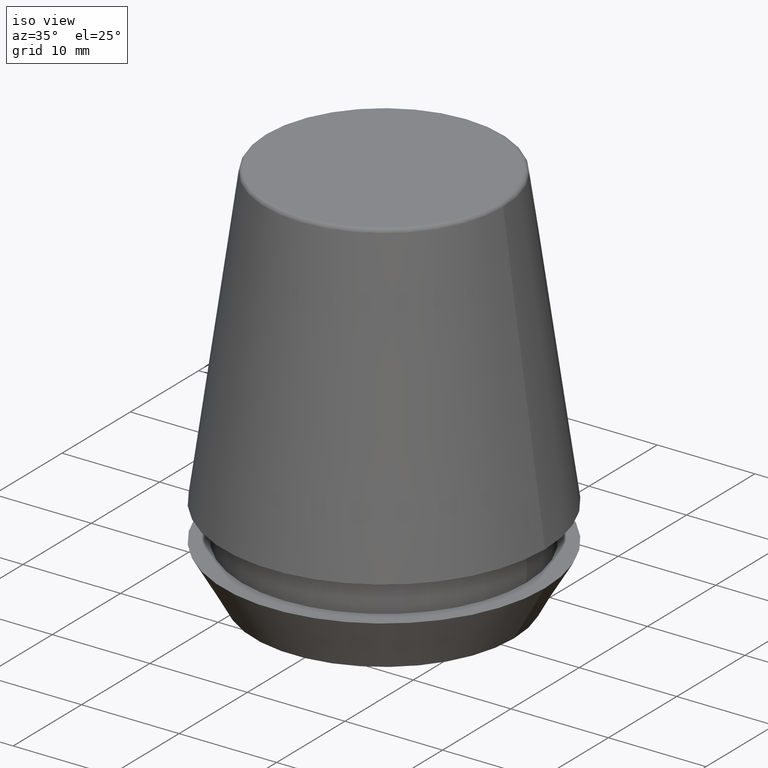
[diagram: clean part render]
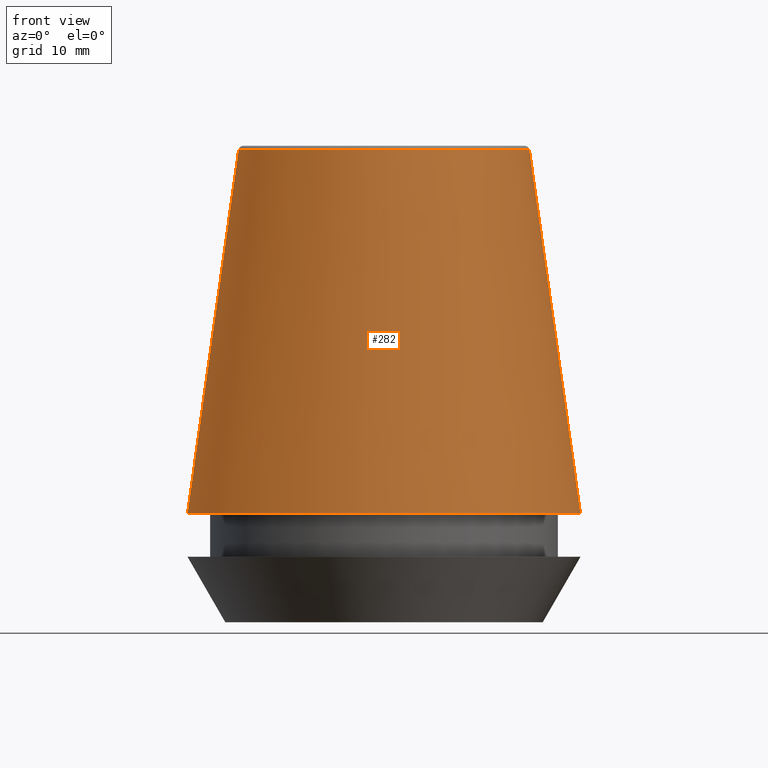
[diagram: tour spotlight — one face highlighted and labeled with its STEP entity id]
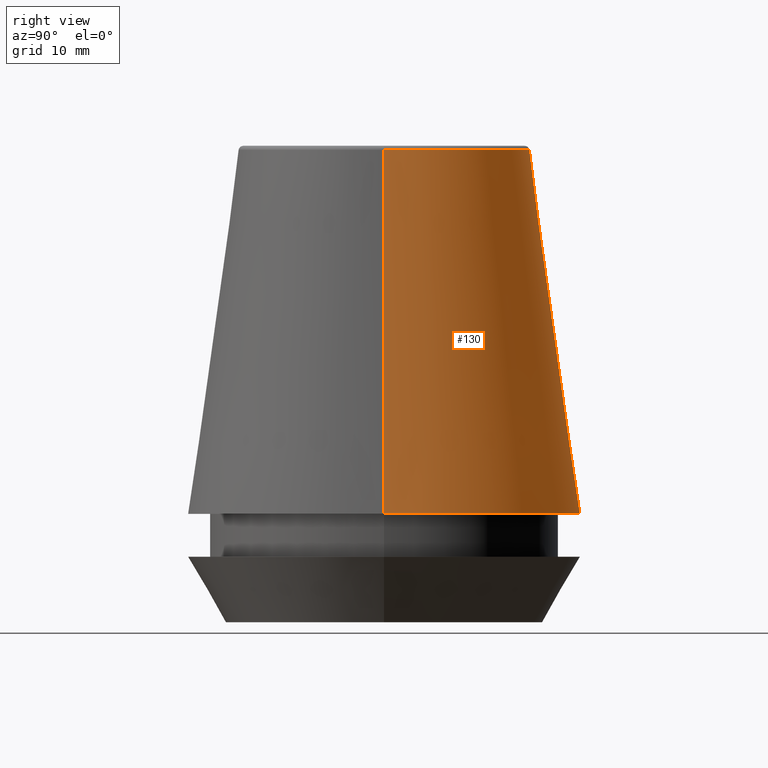
[diagram: tour spotlight — one face highlighted and labeled with its STEP entity id]
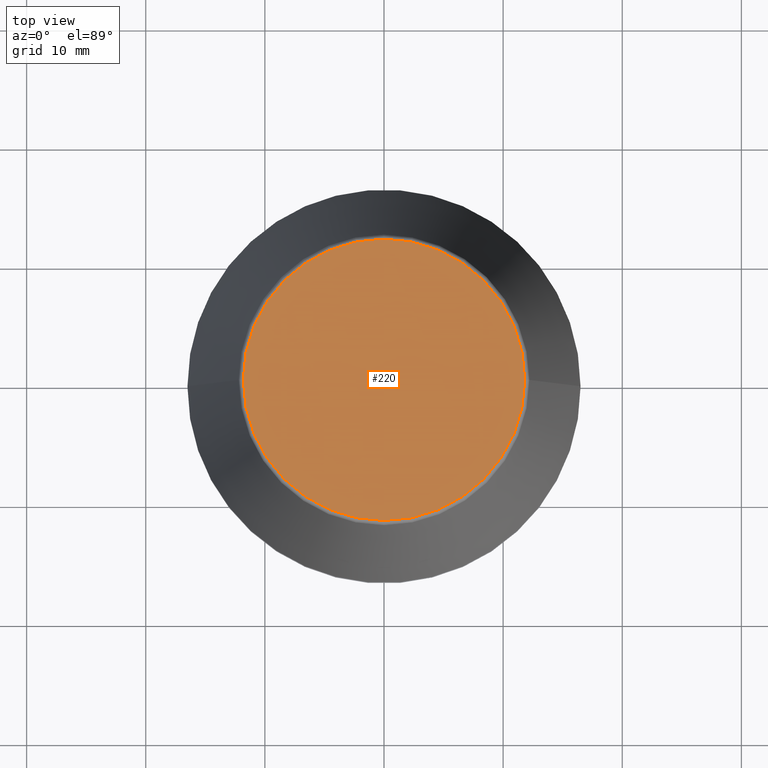
[diagram: tour spotlight — one face highlighted and labeled with its STEP entity id]
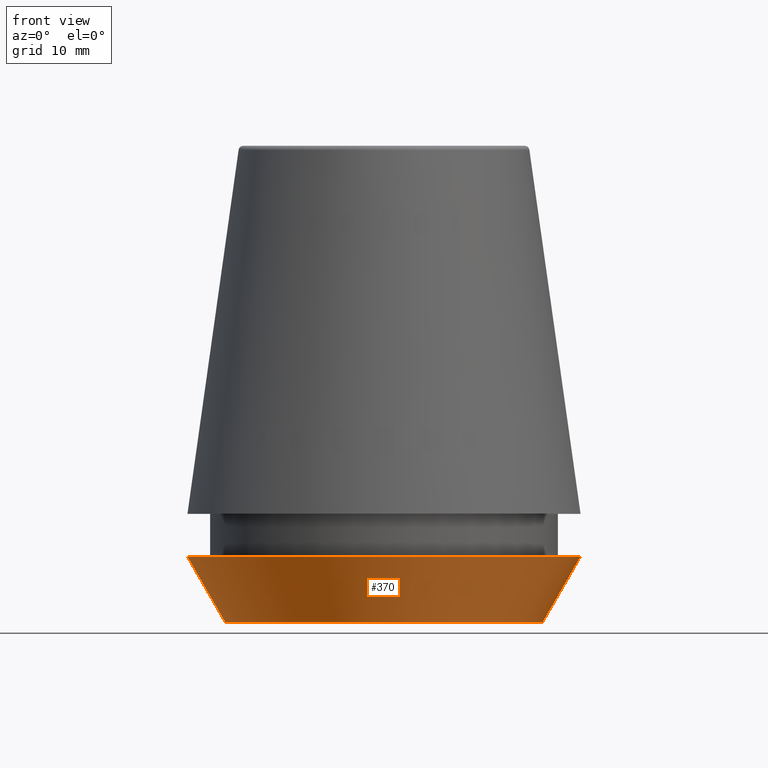
[diagram: tour spotlight — one face highlighted and labeled with its STEP entity id]
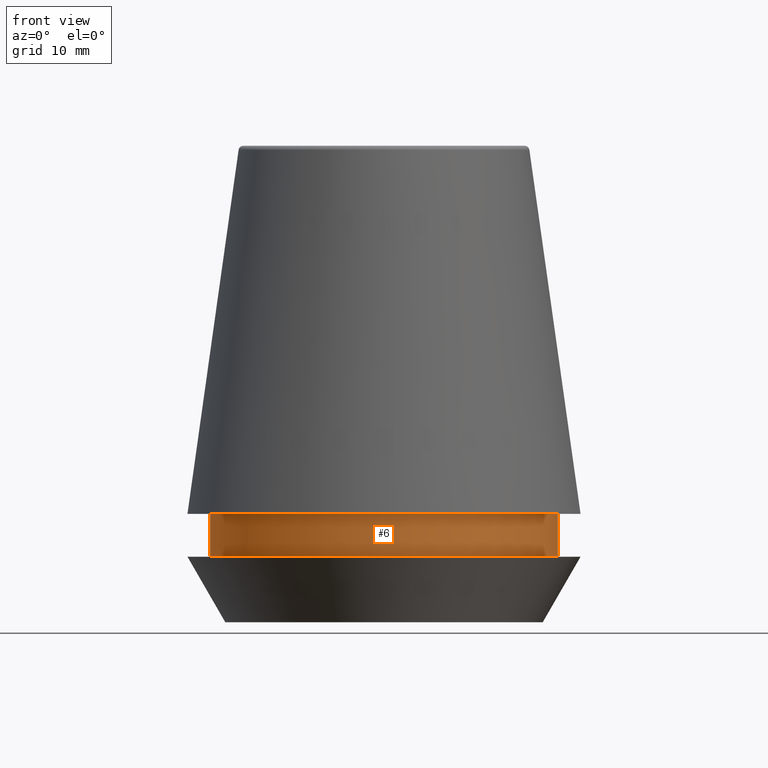
[diagram: tour spotlight — one face highlighted and labeled with its STEP entity id]
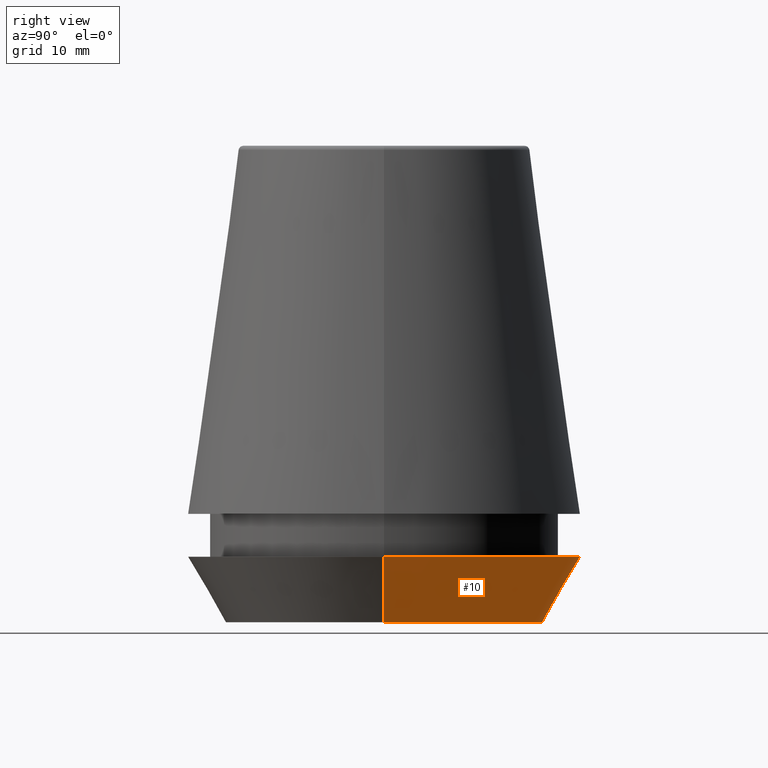
[diagram: tour spotlight — one face highlighted and labeled with its STEP entity id]
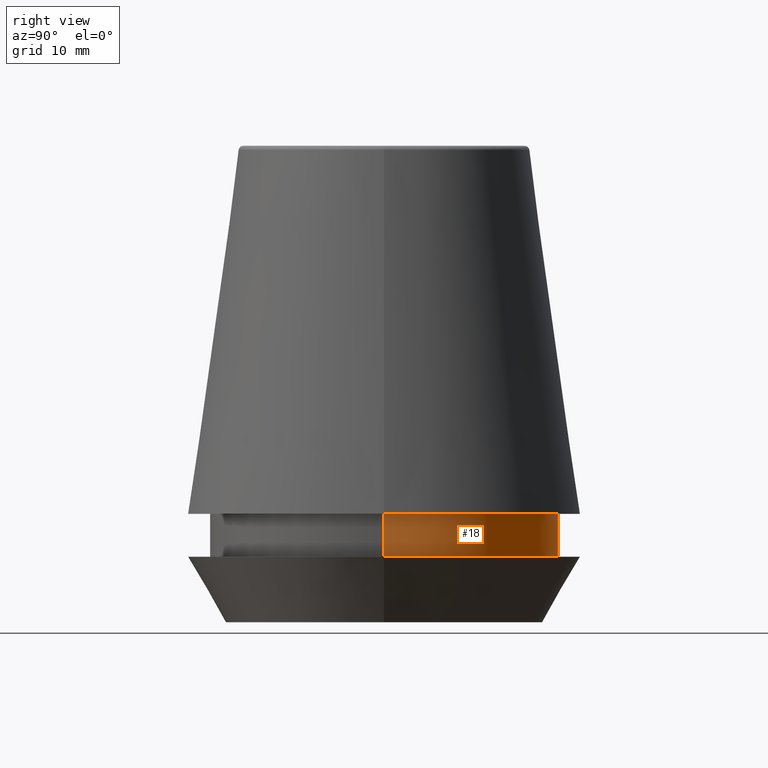
[diagram: tour spotlight — one face highlighted and labeled with its STEP entity id]
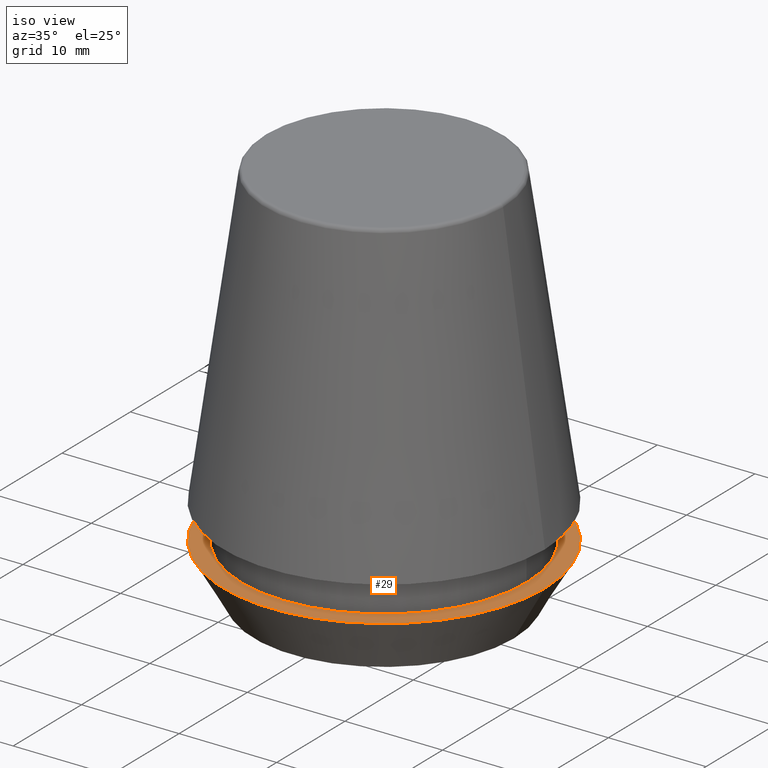
[diagram: tour spotlight — one face highlighted and labeled with its STEP entity id]
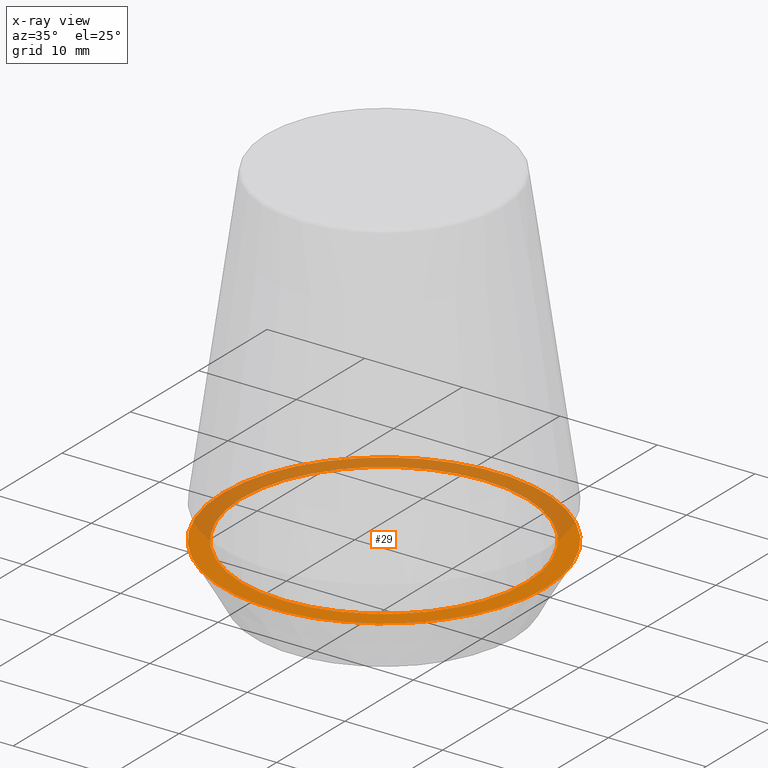
[diagram: x-ray of the same camera — body ghosted, this tour face saturated]
A machine part: a face-by-face anatomy tour. The part has 12 B-rep faces; the first image is the clean iso view, then the 8 largest visible faces are spotlighted one at a time (largest first), each with its STEP entity span.

Face 1 — front view, entity #282. In plain terms, the highlighted conical surface has half-angle 8 deg.
Definition (entity closure, byte-faithful):
#2 = DIRECTION ( 'NONE',  ( 0.1391731009600586900, 1.704378926181473100E-017, -0.9902680687415712500 ) ) ;
#15 = VECTOR ( 'NONE', #131, 1000.000000000000000 ) ;
#20 = ORIENTED_EDGE ( 'NONE', *, *, #148, .T. ) ;
#25 = VERTEX_POINT ( 'NONE', #68 ) ;
#54 = DIRECTION ( 'NONE',  ( -0.0000000000000000000, -0.0000000000000000000, 1.000000000000000000 ) ) ;
#61 = CARTESIAN_POINT ( 'NONE',  ( -16.50032537154048700, 0.0000000000000000000, 9.099999999999997900 ) ) ;
#68 = CARTESIAN_POINT ( 'NONE',  ( 16.50032537154048700, 2.020707065114692300E-015, 9.099999999999997900 ) ) ;
#73 = CARTESIAN_POINT ( 'NONE',  ( 12.20600611160694300, 1.757755848304969800E-015, 39.65566924038402900 ) ) ;
#87 = CARTESIAN_POINT ( 'NONE',  ( 0.0000000000000000000, 0.0000000000000000000, 9.099999999999997900 ) ) ;
#89 = CARTESIAN_POINT ( 'NONE',  ( -16.50032537154048700, 0.0000000000000000000, 9.099999999999997900 ) ) ;
#110 = DIRECTION ( 'NONE',  ( 1.000000000000000000, 0.0000000000000000000, 0.0000000000000000000 ) ) ;
#112 = FACE_OUTER_BOUND ( 'NONE', #215, .T. ) ;
#113 = VERTEX_POINT ( 'NONE', #354 ) ;
#126 = CONICAL_SURFACE ( 'NONE', #190, 16.50032537154048700, 0.1396263401595395900 ) ;
#131 = DIRECTION ( 'NONE',  ( -0.1391731009600586900, 0.0000000000000000000, -0.9902680687415712500 ) ) ;
#146 = DIRECTION ( 'NONE',  ( 0.0000000000000000000, 0.0000000000000000000, -1.000000000000000000 ) ) ;
#148 = EDGE_CURVE ( 'NONE', #283, #25, #168, .T. ) ;
#167 = AXIS2_PLACEMENT_3D ( 'NONE', #87, #294, #110 ) ;
#168 = CIRCLE ( 'NONE', #167, 16.50032537154048700 ) ;
#178 = CARTESIAN_POINT ( 'NONE',  ( 0.0000000000000000000, 0.0000000000000000000, 9.099999999999997900 ) ) ;
#190 = AXIS2_PLACEMENT_3D ( 'NONE', #178, #146, #353 ) ;
#197 = LINE ( 'NONE', #346, #265 ) ;
#215 = EDGE_LOOP ( 'NONE', ( #314, #326, #227, #20 ) ) ;
#221 = VERTEX_POINT ( 'NONE', #73 ) ;
#227 = ORIENTED_EDGE ( 'NONE', *, *, #279, .T. ) ;
#251 = CIRCLE ( 'NONE', #340, 12.20600611160694300 ) ;
#262 = CARTESIAN_POINT ( 'NONE',  ( 0.0000000000000000000, 0.0000000000000000000, 39.65566924038402900 ) ) ;
#265 = VECTOR ( 'NONE', #2, 1000.000000000000000 ) ;
#270 = EDGE_CURVE ( 'NONE', #113, #221, #251, .T. ) ;
#279 = EDGE_CURVE ( 'NONE', #113, #283, #378, .T. ) ;
#280 = DIRECTION ( 'NONE',  ( 1.000000000000000000, 0.0000000000000000000, 0.0000000000000000000 ) ) ;
#281 = EDGE_CURVE ( 'NONE', #221, #25, #197, .T. ) ;
#282 = ADVANCED_FACE ( 'NONE', ( #112 ), #126, .T. ) ;
#283 = VERTEX_POINT ( 'NONE', #89 ) ;
#294 = DIRECTION ( 'NONE',  ( -0.0000000000000000000, -0.0000000000000000000, 1.000000000000000000 ) ) ;
#314 = ORIENTED_EDGE ( 'NONE', *, *, #281, .F. ) ;
#326 = ORIENTED_EDGE ( 'NONE', *, *, #270, .F. ) ;
#340 = AXIS2_PLACEMENT_3D ( 'NONE', #262, #54, #280 ) ;
#346 = CARTESIAN_POINT ( 'NONE',  ( 16.50032537154048700, 2.020707065114692300E-015, 9.099999999999997900 ) ) ;
#353 = DIRECTION ( 'NONE',  ( -1.000000000000000000, 0.0000000000000000000, 0.0000000000000000000 ) ) ;
#354 = CARTESIAN_POINT ( 'NONE',  ( -12.20600611160694300, 0.0000000000000000000, 39.65566924038402900 ) ) ;
#378 = LINE ( 'NONE', #61, #15 ) ;

Face 2 — right view, entity #130. In plain terms, the highlighted conical surface has half-angle 8 deg.
Definition (entity closure, byte-faithful):
#2 = DIRECTION ( 'NONE',  ( 0.1391731009600586900, 1.704378926181473100E-017, -0.9902680687415712500 ) ) ;
#4 = CIRCLE ( 'NONE', #124, 16.50032537154048700 ) ;
#15 = VECTOR ( 'NONE', #131, 1000.000000000000000 ) ;
#21 = ORIENTED_EDGE ( 'NONE', *, *, #281, .T. ) ;
#25 = VERTEX_POINT ( 'NONE', #68 ) ;
#45 = DIRECTION ( 'NONE',  ( -0.0000000000000000000, -0.0000000000000000000, 1.000000000000000000 ) ) ;
#49 = EDGE_LOOP ( 'NONE', ( #192, #21, #70, #102 ) ) ;
#61 = CARTESIAN_POINT ( 'NONE',  ( -16.50032537154048700, 0.0000000000000000000, 9.099999999999997900 ) ) ;
#68 = CARTESIAN_POINT ( 'NONE',  ( 16.50032537154048700, 2.020707065114692300E-015, 9.099999999999997900 ) ) ;
#70 = ORIENTED_EDGE ( 'NONE', *, *, #260, .T. ) ;
#73 = CARTESIAN_POINT ( 'NONE',  ( 12.20600611160694300, 1.757755848304969800E-015, 39.65566924038402900 ) ) ;
#75 = DIRECTION ( 'NONE',  ( 1.000000000000000000, 0.0000000000000000000, 0.0000000000000000000 ) ) ;
#89 = CARTESIAN_POINT ( 'NONE',  ( -16.50032537154048700, 0.0000000000000000000, 9.099999999999997900 ) ) ;
#102 = ORIENTED_EDGE ( 'NONE', *, *, #279, .F. ) ;
#113 = VERTEX_POINT ( 'NONE', #354 ) ;
#124 = AXIS2_PLACEMENT_3D ( 'NONE', #268, #141, #381 ) ;
#130 = ADVANCED_FACE ( 'NONE', ( #139 ), #317, .T. ) ;
#131 = DIRECTION ( 'NONE',  ( -0.1391731009600586900, 0.0000000000000000000, -0.9902680687415712500 ) ) ;
#139 = FACE_OUTER_BOUND ( 'NONE', #49, .T. ) ;
#141 = DIRECTION ( 'NONE',  ( -0.0000000000000000000, -0.0000000000000000000, 1.000000000000000000 ) ) ;
#162 = CIRCLE ( 'NONE', #172, 12.20600611160694300 ) ;
#172 = AXIS2_PLACEMENT_3D ( 'NONE', #187, #45, #75 ) ;
#187 = CARTESIAN_POINT ( 'NONE',  ( 0.0000000000000000000, 0.0000000000000000000, 39.65566924038402900 ) ) ;
#192 = ORIENTED_EDGE ( 'NONE', *, *, #254, .F. ) ;
#197 = LINE ( 'NONE', #346, #265 ) ;
#221 = VERTEX_POINT ( 'NONE', #73 ) ;
#254 = EDGE_CURVE ( 'NONE', #221, #113, #162, .T. ) ;
#260 = EDGE_CURVE ( 'NONE', #25, #283, #4, .T. ) ;
#265 = VECTOR ( 'NONE', #2, 1000.000000000000000 ) ;
#268 = CARTESIAN_POINT ( 'NONE',  ( 0.0000000000000000000, 0.0000000000000000000, 9.099999999999997900 ) ) ;
#271 = CARTESIAN_POINT ( 'NONE',  ( 0.0000000000000000000, 0.0000000000000000000, 9.099999999999997900 ) ) ;
#279 = EDGE_CURVE ( 'NONE', #113, #283, #378, .T. ) ;
#281 = EDGE_CURVE ( 'NONE', #221, #25, #197, .T. ) ;
#283 = VERTEX_POINT ( 'NONE', #89 ) ;
#296 = DIRECTION ( 'NONE',  ( 0.0000000000000000000, 0.0000000000000000000, -1.000000000000000000 ) ) ;
#302 = DIRECTION ( 'NONE',  ( -1.000000000000000000, 0.0000000000000000000, 0.0000000000000000000 ) ) ;
#317 = CONICAL_SURFACE ( 'NONE', #376, 16.50032537154048700, 0.1396263401595395900 ) ;
#346 = CARTESIAN_POINT ( 'NONE',  ( 16.50032537154048700, 2.020707065114692300E-015, 9.099999999999997900 ) ) ;
#354 = CARTESIAN_POINT ( 'NONE',  ( -12.20600611160694300, 0.0000000000000000000, 39.65566924038402900 ) ) ;
#376 = AXIS2_PLACEMENT_3D ( 'NONE', #271, #296, #302 ) ;
#378 = LINE ( 'NONE', #61, #15 ) ;
#381 = DIRECTION ( 'NONE',  ( 1.000000000000000000, 0.0000000000000000000, 0.0000000000000000000 ) ) ;

Face 3 — top view, entity #220. In plain terms, the highlighted planar face has unit normal (0, 0, -1).
Definition (entity closure, byte-faithful):
#13 = PLANE ( 'NONE',  #216 ) ;
#23 = AXIS2_PLACEMENT_3D ( 'NONE', #43, #219, #164 ) ;
#37 = CIRCLE ( 'NONE', #23, 11.80989888411031400 ) ;
#43 = CARTESIAN_POINT ( 'NONE',  ( 0.0000000000000000000, 0.0000000000000000000, 40.00000000000000700 ) ) ;
#64 = DIRECTION ( 'NONE',  ( 1.000000000000000000, 0.0000000000000000000, 0.0000000000000000000 ) ) ;
#72 = FACE_OUTER_BOUND ( 'NONE', #237, .T. ) ;
#79 = ORIENTED_EDGE ( 'NONE', *, *, #92, .T. ) ;
#92 = EDGE_CURVE ( 'NONE', #263, #160, #379, .T. ) ;
#145 = CARTESIAN_POINT ( 'NONE',  ( -11.80989888411031400, 1.470550059081603400E-015, 40.00000000000000700 ) ) ;
#160 = VERTEX_POINT ( 'NONE', #329 ) ;
#164 = DIRECTION ( 'NONE',  ( 1.000000000000000000, 0.0000000000000000000, 0.0000000000000000000 ) ) ;
#171 = CARTESIAN_POINT ( 'NONE',  ( 0.0000000000000000000, 11.80989888411031400, 40.00000000000000700 ) ) ;
#188 = DIRECTION ( 'NONE',  ( 0.0000000000000000000, 0.0000000000000000000, -1.000000000000000000 ) ) ;
#207 = EDGE_CURVE ( 'NONE', #160, #263, #37, .T. ) ;
#216 = AXIS2_PLACEMENT_3D ( 'NONE', #171, #188, #218 ) ;
#218 = DIRECTION ( 'NONE',  ( -1.000000000000000000, 0.0000000000000000000, -0.0000000000000000000 ) ) ;
#219 = DIRECTION ( 'NONE',  ( -0.0000000000000000000, -0.0000000000000000000, 1.000000000000000000 ) ) ;
#220 = ADVANCED_FACE ( 'NONE', ( #72 ), #13, .F. ) ;
#226 = AXIS2_PLACEMENT_3D ( 'NONE', #356, #243, #64 ) ;
#237 = EDGE_LOOP ( 'NONE', ( #287, #79 ) ) ;
#243 = DIRECTION ( 'NONE',  ( -0.0000000000000000000, -0.0000000000000000000, 1.000000000000000000 ) ) ;
#263 = VERTEX_POINT ( 'NONE', #145 ) ;
#287 = ORIENTED_EDGE ( 'NONE', *, *, #207, .T. ) ;
#329 = CARTESIAN_POINT ( 'NONE',  ( 11.80989888411031400, 0.0000000000000000000, 40.00000000000000700 ) ) ;
#356 = CARTESIAN_POINT ( 'NONE',  ( 0.0000000000000000000, 0.0000000000000000000, 40.00000000000000700 ) ) ;
#379 = CIRCLE ( 'NONE', #226, 11.80989888411031400 ) ;

Face 4 — front view, entity #370. In plain terms, the highlighted conical surface has half-angle 30 deg.
Definition (entity closure, byte-faithful):
#12 = DIRECTION ( 'NONE',  ( 1.000000000000000000, 0.0000000000000000000, 0.0000000000000000000 ) ) ;
#22 = FACE_OUTER_BOUND ( 'NONE', #135, .T. ) ;
#28 = DIRECTION ( 'NONE',  ( 0.4999999999999947300, 0.0000000000000000000, 0.8660254037844418200 ) ) ;
#39 = DIRECTION ( 'NONE',  ( 1.000000000000000000, 0.0000000000000000000, 0.0000000000000000000 ) ) ;
#58 = ORIENTED_EDGE ( 'NONE', *, *, #383, .T. ) ;
#63 = DIRECTION ( 'NONE',  ( -0.4999999999999947300, 6.123233995736700700E-017, 0.8660254037844418200 ) ) ;
#86 = AXIS2_PLACEMENT_3D ( 'NONE', #333, #125, #12 ) ;
#100 = DIRECTION ( 'NONE',  ( -0.0000000000000000000, -0.0000000000000000000, 1.000000000000000000 ) ) ;
#109 = VERTEX_POINT ( 'NONE', #179 ) ;
#115 = CARTESIAN_POINT ( 'NONE',  ( -16.50000000000000000, 2.020667218593133100E-015, 5.500000000000005300 ) ) ;
#119 = EDGE_CURVE ( 'NONE', #308, #358, #277, .T. ) ;
#125 = DIRECTION ( 'NONE',  ( -0.0000000000000000000, -0.0000000000000000000, 1.000000000000000000 ) ) ;
#129 = VERTEX_POINT ( 'NONE', #386 ) ;
#132 = LINE ( 'NONE', #299, #137 ) ;
#135 = EDGE_LOOP ( 'NONE', ( #234, #58, #165, #292 ) ) ;
#137 = VECTOR ( 'NONE', #28, 999.9999999999998900 ) ;
#165 = ORIENTED_EDGE ( 'NONE', *, *, #290, .T. ) ;
#179 = CARTESIAN_POINT ( 'NONE',  ( 16.50000000000000000, 0.0000000000000000000, 5.500000000000005300 ) ) ;
#186 = CARTESIAN_POINT ( 'NONE',  ( 0.0000000000000000000, 0.0000000000000000000, 0.0000000000000000000 ) ) ;
#193 = CONICAL_SURFACE ( 'NONE', #86, 13.32457351945710200, 0.5235987755982927100 ) ;
#205 = CIRCLE ( 'NONE', #286, 16.50000000000000000 ) ;
#228 = CIRCLE ( 'NONE', #239, 13.32457351945710200 ) ;
#234 = ORIENTED_EDGE ( 'NONE', *, *, #119, .F. ) ;
#239 = AXIS2_PLACEMENT_3D ( 'NONE', #186, #316, #39 ) ;
#277 = LINE ( 'NONE', #303, #304 ) ;
#286 = AXIS2_PLACEMENT_3D ( 'NONE', #367, #100, #320 ) ;
#290 = EDGE_CURVE ( 'NONE', #129, #109, #132, .T. ) ;
#292 = ORIENTED_EDGE ( 'NONE', *, *, #301, .F. ) ;
#299 = CARTESIAN_POINT ( 'NONE',  ( 13.32457351945710200, 0.0000000000000000000, 0.0000000000000000000 ) ) ;
#301 = EDGE_CURVE ( 'NONE', #358, #109, #205, .T. ) ;
#303 = CARTESIAN_POINT ( 'NONE',  ( -13.32457351945710200, 1.631789631060672300E-015, 0.0000000000000000000 ) ) ;
#304 = VECTOR ( 'NONE', #63, 999.9999999999998900 ) ;
#308 = VERTEX_POINT ( 'NONE', #327 ) ;
#316 = DIRECTION ( 'NONE',  ( -0.0000000000000000000, -0.0000000000000000000, 1.000000000000000000 ) ) ;
#320 = DIRECTION ( 'NONE',  ( 1.000000000000000000, 0.0000000000000000000, 0.0000000000000000000 ) ) ;
#327 = CARTESIAN_POINT ( 'NONE',  ( -13.32457351945710200, 1.826228424826902600E-015, 0.0000000000000000000 ) ) ;
#333 = CARTESIAN_POINT ( 'NONE',  ( 0.0000000000000000000, 0.0000000000000000000, 0.0000000000000000000 ) ) ;
#358 = VERTEX_POINT ( 'NONE', #115 ) ;
#367 = CARTESIAN_POINT ( 'NONE',  ( 0.0000000000000000000, 0.0000000000000000000, 5.500000000000005300 ) ) ;
#370 = ADVANCED_FACE ( 'NONE', ( #22 ), #193, .T. ) ;
#383 = EDGE_CURVE ( 'NONE', #308, #129, #228, .T. ) ;
#386 = CARTESIAN_POINT ( 'NONE',  ( 13.32457351945710200, 0.0000000000000000000, 0.0000000000000000000 ) ) ;

Face 5 — front view, entity #6. In plain terms, the highlighted cylindrical surface (partial cylindrical patch) has radius 14.6 mm, axis along (-0, -0, 1).
Definition (entity closure, byte-faithful):
#6 = ADVANCED_FACE ( 'NONE', ( #104 ), #339, .T. ) ;
#34 = ORIENTED_EDGE ( 'NONE', *, *, #297, .T. ) ;
#62 = DIRECTION ( 'NONE',  ( -0.0000000000000000000, -0.0000000000000000000, 1.000000000000000000 ) ) ;
#78 = DIRECTION ( 'NONE',  ( -0.0000000000000000000, -0.0000000000000000000, 1.000000000000000000 ) ) ;
#90 = LINE ( 'NONE', #242, #266 ) ;
#95 = CARTESIAN_POINT ( 'NONE',  ( 0.0000000000000000000, 0.0000000000000000000, 101.8074564848000400 ) ) ;
#103 = CIRCLE ( 'NONE', #134, 14.60000000000000000 ) ;
#104 = FACE_OUTER_BOUND ( 'NONE', #269, .T. ) ;
#106 = CARTESIAN_POINT ( 'NONE',  ( 0.0000000000000000000, 0.0000000000000000000, 5.500000000000005300 ) ) ;
#116 = DIRECTION ( 'NONE',  ( -0.0000000000000000000, -0.0000000000000000000, 1.000000000000000000 ) ) ;
#120 = EDGE_CURVE ( 'NONE', #369, #342, #90, .T. ) ;
#127 = CARTESIAN_POINT ( 'NONE',  ( 14.60000000000000000, 0.0000000000000000000, 9.099999999999997900 ) ) ;
#134 = AXIS2_PLACEMENT_3D ( 'NONE', #106, #214, #247 ) ;
#138 = CARTESIAN_POINT ( 'NONE',  ( 0.0000000000000000000, 0.0000000000000000000, 9.099999999999997900 ) ) ;
#144 = AXIS2_PLACEMENT_3D ( 'NONE', #138, #78, #224 ) ;
#155 = VERTEX_POINT ( 'NONE', #236 ) ;
#214 = DIRECTION ( 'NONE',  ( -0.0000000000000000000, -0.0000000000000000000, 1.000000000000000000 ) ) ;
#224 = DIRECTION ( 'NONE',  ( 1.000000000000000000, 0.0000000000000000000, 0.0000000000000000000 ) ) ;
#229 = ORIENTED_EDGE ( 'NONE', *, *, #120, .F. ) ;
#236 = CARTESIAN_POINT ( 'NONE',  ( 14.60000000000000000, 0.0000000000000000000, 5.500000000000005300 ) ) ;
#242 = CARTESIAN_POINT ( 'NONE',  ( -14.60000000000000000, 1.787984326755135800E-015, 101.8074564848000400 ) ) ;
#244 = CARTESIAN_POINT ( 'NONE',  ( -14.60000000000000000, 1.787984326755135800E-015, 5.500000000000005300 ) ) ;
#247 = DIRECTION ( 'NONE',  ( 1.000000000000000000, 0.0000000000000000000, 0.0000000000000000000 ) ) ;
#248 = ORIENTED_EDGE ( 'NONE', *, *, #315, .F. ) ;
#250 = ORIENTED_EDGE ( 'NONE', *, *, #345, .T. ) ;
#264 = VERTEX_POINT ( 'NONE', #127 ) ;
#266 = VECTOR ( 'NONE', #116, 1000.000000000000000 ) ;
#269 = EDGE_LOOP ( 'NONE', ( #229, #250, #34, #248 ) ) ;
#275 = DIRECTION ( 'NONE',  ( 1.000000000000000000, 0.0000000000000000000, 0.0000000000000000000 ) ) ;
#295 = CIRCLE ( 'NONE', #144, 14.60000000000000000 ) ;
#297 = EDGE_CURVE ( 'NONE', #155, #264, #332, .T. ) ;
#315 = EDGE_CURVE ( 'NONE', #342, #264, #295, .T. ) ;
#332 = LINE ( 'NONE', #349, #338 ) ;
#338 = VECTOR ( 'NONE', #62, 1000.000000000000000 ) ;
#339 = CYLINDRICAL_SURFACE ( 'NONE', #360, 14.60000000000000000 ) ;
#342 = VERTEX_POINT ( 'NONE', #373 ) ;
#345 = EDGE_CURVE ( 'NONE', #369, #155, #103, .T. ) ;
#349 = CARTESIAN_POINT ( 'NONE',  ( 14.60000000000000000, 0.0000000000000000000, 101.8074564848000400 ) ) ;
#360 = AXIS2_PLACEMENT_3D ( 'NONE', #95, #364, #275 ) ;
#364 = DIRECTION ( 'NONE',  ( -0.0000000000000000000, -0.0000000000000000000, 1.000000000000000000 ) ) ;
#369 = VERTEX_POINT ( 'NONE', #244 ) ;
#373 = CARTESIAN_POINT ( 'NONE',  ( -14.60000000000000000, 1.787984326755135800E-015, 9.099999999999997900 ) ) ;

Face 6 — right view, entity #10. In plain terms, the highlighted conical surface has half-angle 30 deg.
Definition (entity closure, byte-faithful):
#7 = DIRECTION ( 'NONE',  ( -0.0000000000000000000, -0.0000000000000000000, 1.000000000000000000 ) ) ;
#10 = ADVANCED_FACE ( 'NONE', ( #363 ), #351, .T. ) ;
#16 = AXIS2_PLACEMENT_3D ( 'NONE', #41, #17, #255 ) ;
#17 = DIRECTION ( 'NONE',  ( -0.0000000000000000000, -0.0000000000000000000, 1.000000000000000000 ) ) ;
#28 = DIRECTION ( 'NONE',  ( 0.4999999999999947300, 0.0000000000000000000, 0.8660254037844418200 ) ) ;
#32 = AXIS2_PLACEMENT_3D ( 'NONE', #158, #7, #213 ) ;
#35 = DIRECTION ( 'NONE',  ( -0.0000000000000000000, -0.0000000000000000000, 1.000000000000000000 ) ) ;
#38 = EDGE_LOOP ( 'NONE', ( #298, #117, #80, #47 ) ) ;
#41 = CARTESIAN_POINT ( 'NONE',  ( 0.0000000000000000000, 0.0000000000000000000, 5.500000000000005300 ) ) ;
#47 = ORIENTED_EDGE ( 'NONE', *, *, #290, .F. ) ;
#63 = DIRECTION ( 'NONE',  ( -0.4999999999999947300, 6.123233995736700700E-017, 0.8660254037844418200 ) ) ;
#80 = ORIENTED_EDGE ( 'NONE', *, *, #231, .F. ) ;
#109 = VERTEX_POINT ( 'NONE', #179 ) ;
#115 = CARTESIAN_POINT ( 'NONE',  ( -16.50000000000000000, 2.020667218593133100E-015, 5.500000000000005300 ) ) ;
#117 = ORIENTED_EDGE ( 'NONE', *, *, #119, .T. ) ;
#119 = EDGE_CURVE ( 'NONE', #308, #358, #277, .T. ) ;
#129 = VERTEX_POINT ( 'NONE', #386 ) ;
#132 = LINE ( 'NONE', #299, #137 ) ;
#137 = VECTOR ( 'NONE', #28, 999.9999999999998900 ) ;
#150 = CIRCLE ( 'NONE', #16, 16.50000000000000000 ) ;
#158 = CARTESIAN_POINT ( 'NONE',  ( 0.0000000000000000000, 0.0000000000000000000, 0.0000000000000000000 ) ) ;
#159 = DIRECTION ( 'NONE',  ( 1.000000000000000000, 0.0000000000000000000, 0.0000000000000000000 ) ) ;
#179 = CARTESIAN_POINT ( 'NONE',  ( 16.50000000000000000, 0.0000000000000000000, 5.500000000000005300 ) ) ;
#213 = DIRECTION ( 'NONE',  ( 1.000000000000000000, 0.0000000000000000000, 0.0000000000000000000 ) ) ;
#231 = EDGE_CURVE ( 'NONE', #109, #358, #150, .T. ) ;
#255 = DIRECTION ( 'NONE',  ( 1.000000000000000000, 0.0000000000000000000, 0.0000000000000000000 ) ) ;
#277 = LINE ( 'NONE', #303, #304 ) ;
#290 = EDGE_CURVE ( 'NONE', #129, #109, #132, .T. ) ;
#298 = ORIENTED_EDGE ( 'NONE', *, *, #324, .T. ) ;
#299 = CARTESIAN_POINT ( 'NONE',  ( 13.32457351945710200, 0.0000000000000000000, 0.0000000000000000000 ) ) ;
#303 = CARTESIAN_POINT ( 'NONE',  ( -13.32457351945710200, 1.631789631060672300E-015, 0.0000000000000000000 ) ) ;
#304 = VECTOR ( 'NONE', #63, 999.9999999999998900 ) ;
#308 = VERTEX_POINT ( 'NONE', #327 ) ;
#312 = CARTESIAN_POINT ( 'NONE',  ( 0.0000000000000000000, 0.0000000000000000000, 0.0000000000000000000 ) ) ;
#324 = EDGE_CURVE ( 'NONE', #129, #308, #352, .T. ) ;
#327 = CARTESIAN_POINT ( 'NONE',  ( -13.32457351945710200, 1.826228424826902600E-015, 0.0000000000000000000 ) ) ;
#351 = CONICAL_SURFACE ( 'NONE', #357, 13.32457351945710200, 0.5235987755982927100 ) ;
#352 = CIRCLE ( 'NONE', #32, 13.32457351945710200 ) ;
#357 = AXIS2_PLACEMENT_3D ( 'NONE', #312, #35, #159 ) ;
#358 = VERTEX_POINT ( 'NONE', #115 ) ;
#363 = FACE_OUTER_BOUND ( 'NONE', #38, .T. ) ;
#386 = CARTESIAN_POINT ( 'NONE',  ( 13.32457351945710200, 0.0000000000000000000, 0.0000000000000000000 ) ) ;

Face 7 — right view, entity #18. In plain terms, the highlighted cylindrical surface (partial cylindrical patch) has radius 14.6 mm, axis along (-0, -0, 1).
Definition (entity closure, byte-faithful):
#9 = DIRECTION ( 'NONE',  ( 1.000000000000000000, 0.0000000000000000000, 0.0000000000000000000 ) ) ;
#11 = EDGE_LOOP ( 'NONE', ( #85, #14, #122, #374 ) ) ;
#14 = ORIENTED_EDGE ( 'NONE', *, *, #120, .T. ) ;
#18 = ADVANCED_FACE ( 'NONE', ( #60 ), #241, .T. ) ;
#27 = CARTESIAN_POINT ( 'NONE',  ( 0.0000000000000000000, 0.0000000000000000000, 5.500000000000005300 ) ) ;
#53 = CARTESIAN_POINT ( 'NONE',  ( 0.0000000000000000000, 0.0000000000000000000, 9.099999999999997900 ) ) ;
#60 = FACE_OUTER_BOUND ( 'NONE', #11, .T. ) ;
#62 = DIRECTION ( 'NONE',  ( -0.0000000000000000000, -0.0000000000000000000, 1.000000000000000000 ) ) ;
#69 = CIRCLE ( 'NONE', #184, 14.60000000000000000 ) ;
#83 = DIRECTION ( 'NONE',  ( -0.0000000000000000000, -0.0000000000000000000, 1.000000000000000000 ) ) ;
#85 = ORIENTED_EDGE ( 'NONE', *, *, #319, .T. ) ;
#90 = LINE ( 'NONE', #242, #266 ) ;
#107 = DIRECTION ( 'NONE',  ( 1.000000000000000000, 0.0000000000000000000, 0.0000000000000000000 ) ) ;
#116 = DIRECTION ( 'NONE',  ( -0.0000000000000000000, -0.0000000000000000000, 1.000000000000000000 ) ) ;
#120 = EDGE_CURVE ( 'NONE', #369, #342, #90, .T. ) ;
#122 = ORIENTED_EDGE ( 'NONE', *, *, #385, .F. ) ;
#127 = CARTESIAN_POINT ( 'NONE',  ( 14.60000000000000000, 0.0000000000000000000, 9.099999999999997900 ) ) ;
#155 = VERTEX_POINT ( 'NONE', #236 ) ;
#166 = CIRCLE ( 'NONE', #371, 14.60000000000000000 ) ;
#184 = AXIS2_PLACEMENT_3D ( 'NONE', #53, #83, #107 ) ;
#206 = DIRECTION ( 'NONE',  ( -0.0000000000000000000, -0.0000000000000000000, 1.000000000000000000 ) ) ;
#236 = CARTESIAN_POINT ( 'NONE',  ( 14.60000000000000000, 0.0000000000000000000, 5.500000000000005300 ) ) ;
#241 = CYLINDRICAL_SURFACE ( 'NONE', #368, 14.60000000000000000 ) ;
#242 = CARTESIAN_POINT ( 'NONE',  ( -14.60000000000000000, 1.787984326755135800E-015, 101.8074564848000400 ) ) ;
#244 = CARTESIAN_POINT ( 'NONE',  ( -14.60000000000000000, 1.787984326755135800E-015, 5.500000000000005300 ) ) ;
#264 = VERTEX_POINT ( 'NONE', #127 ) ;
#266 = VECTOR ( 'NONE', #116, 1000.000000000000000 ) ;
#297 = EDGE_CURVE ( 'NONE', #155, #264, #332, .T. ) ;
#305 = DIRECTION ( 'NONE',  ( 1.000000000000000000, 0.0000000000000000000, 0.0000000000000000000 ) ) ;
#310 = DIRECTION ( 'NONE',  ( -0.0000000000000000000, -0.0000000000000000000, 1.000000000000000000 ) ) ;
#319 = EDGE_CURVE ( 'NONE', #155, #369, #166, .T. ) ;
#332 = LINE ( 'NONE', #349, #338 ) ;
#338 = VECTOR ( 'NONE', #62, 1000.000000000000000 ) ;
#342 = VERTEX_POINT ( 'NONE', #373 ) ;
#349 = CARTESIAN_POINT ( 'NONE',  ( 14.60000000000000000, 0.0000000000000000000, 101.8074564848000400 ) ) ;
#361 = CARTESIAN_POINT ( 'NONE',  ( 0.0000000000000000000, 0.0000000000000000000, 101.8074564848000400 ) ) ;
#368 = AXIS2_PLACEMENT_3D ( 'NONE', #361, #310, #9 ) ;
#369 = VERTEX_POINT ( 'NONE', #244 ) ;
#371 = AXIS2_PLACEMENT_3D ( 'NONE', #27, #206, #305 ) ;
#373 = CARTESIAN_POINT ( 'NONE',  ( -14.60000000000000000, 1.787984326755135800E-015, 9.099999999999997900 ) ) ;
#374 = ORIENTED_EDGE ( 'NONE', *, *, #297, .F. ) ;
#385 = EDGE_CURVE ( 'NONE', #264, #342, #69, .T. ) ;

Face 8 — iso view, entity #29. An x-ray twin of the same camera follows (body ghosted, this face saturated) — the face is partly hidden behind the body. In plain terms, the highlighted planar face has unit normal (0, 0, -1).
Definition (entity closure, byte-faithful):
#8 = DIRECTION ( 'NONE',  ( 0.0000000000000000000, 0.0000000000000000000, -1.000000000000000000 ) ) ;
#16 = AXIS2_PLACEMENT_3D ( 'NONE', #41, #17, #255 ) ;
#17 = DIRECTION ( 'NONE',  ( -0.0000000000000000000, -0.0000000000000000000, 1.000000000000000000 ) ) ;
#27 = CARTESIAN_POINT ( 'NONE',  ( 0.0000000000000000000, 0.0000000000000000000, 5.500000000000005300 ) ) ;
#29 = ADVANCED_FACE ( 'NONE', ( #276, #99 ), #33, .F. ) ;
#33 = PLANE ( 'NONE',  #377 ) ;
#41 = CARTESIAN_POINT ( 'NONE',  ( 0.0000000000000000000, 0.0000000000000000000, 5.500000000000005300 ) ) ;
#66 = DIRECTION ( 'NONE',  ( -1.000000000000000000, 0.0000000000000000000, -0.0000000000000000000 ) ) ;
#74 = EDGE_LOOP ( 'NONE', ( #246, #382 ) ) ;
#99 = FACE_OUTER_BOUND ( 'NONE', #74, .T. ) ;
#100 = DIRECTION ( 'NONE',  ( -0.0000000000000000000, -0.0000000000000000000, 1.000000000000000000 ) ) ;
#103 = CIRCLE ( 'NONE', #134, 14.60000000000000000 ) ;
#106 = CARTESIAN_POINT ( 'NONE',  ( 0.0000000000000000000, 0.0000000000000000000, 5.500000000000005300 ) ) ;
#109 = VERTEX_POINT ( 'NONE', #179 ) ;
#115 = CARTESIAN_POINT ( 'NONE',  ( -16.50000000000000000, 2.020667218593133100E-015, 5.500000000000005300 ) ) ;
#134 = AXIS2_PLACEMENT_3D ( 'NONE', #106, #214, #247 ) ;
#142 = ORIENTED_EDGE ( 'NONE', *, *, #319, .F. ) ;
#150 = CIRCLE ( 'NONE', #16, 16.50000000000000000 ) ;
#155 = VERTEX_POINT ( 'NONE', #236 ) ;
#166 = CIRCLE ( 'NONE', #371, 14.60000000000000000 ) ;
#179 = CARTESIAN_POINT ( 'NONE',  ( 16.50000000000000000, 0.0000000000000000000, 5.500000000000005300 ) ) ;
#182 = CARTESIAN_POINT ( 'NONE',  ( 0.0000000000000000000, 16.50000000000000000, 5.500000000000002700 ) ) ;
#199 = EDGE_LOOP ( 'NONE', ( #142, #204 ) ) ;
#204 = ORIENTED_EDGE ( 'NONE', *, *, #345, .F. ) ;
#205 = CIRCLE ( 'NONE', #286, 16.50000000000000000 ) ;
#206 = DIRECTION ( 'NONE',  ( -0.0000000000000000000, -0.0000000000000000000, 1.000000000000000000 ) ) ;
#214 = DIRECTION ( 'NONE',  ( -0.0000000000000000000, -0.0000000000000000000, 1.000000000000000000 ) ) ;
#231 = EDGE_CURVE ( 'NONE', #109, #358, #150, .T. ) ;
#236 = CARTESIAN_POINT ( 'NONE',  ( 14.60000000000000000, 0.0000000000000000000, 5.500000000000005300 ) ) ;
#244 = CARTESIAN_POINT ( 'NONE',  ( -14.60000000000000000, 1.787984326755135800E-015, 5.500000000000005300 ) ) ;
#246 = ORIENTED_EDGE ( 'NONE', *, *, #231, .T. ) ;
#247 = DIRECTION ( 'NONE',  ( 1.000000000000000000, 0.0000000000000000000, 0.0000000000000000000 ) ) ;
#255 = DIRECTION ( 'NONE',  ( 1.000000000000000000, 0.0000000000000000000, 0.0000000000000000000 ) ) ;
#276 = FACE_BOUND ( 'NONE', #199, .T. ) ;
#286 = AXIS2_PLACEMENT_3D ( 'NONE', #367, #100, #320 ) ;
#301 = EDGE_CURVE ( 'NONE', #358, #109, #205, .T. ) ;
#305 = DIRECTION ( 'NONE',  ( 1.000000000000000000, 0.0000000000000000000, 0.0000000000000000000 ) ) ;
#319 = EDGE_CURVE ( 'NONE', #155, #369, #166, .T. ) ;
#320 = DIRECTION ( 'NONE',  ( 1.000000000000000000, 0.0000000000000000000, 0.0000000000000000000 ) ) ;
#345 = EDGE_CURVE ( 'NONE', #369, #155, #103, .T. ) ;
#358 = VERTEX_POINT ( 'NONE', #115 ) ;
#367 = CARTESIAN_POINT ( 'NONE',  ( 0.0000000000000000000, 0.0000000000000000000, 5.500000000000005300 ) ) ;
#369 = VERTEX_POINT ( 'NONE', #244 ) ;
#371 = AXIS2_PLACEMENT_3D ( 'NONE', #27, #206, #305 ) ;
#377 = AXIS2_PLACEMENT_3D ( 'NONE', #182, #8, #66 ) ;
#382 = ORIENTED_EDGE ( 'NONE', *, *, #301, .T. ) ;